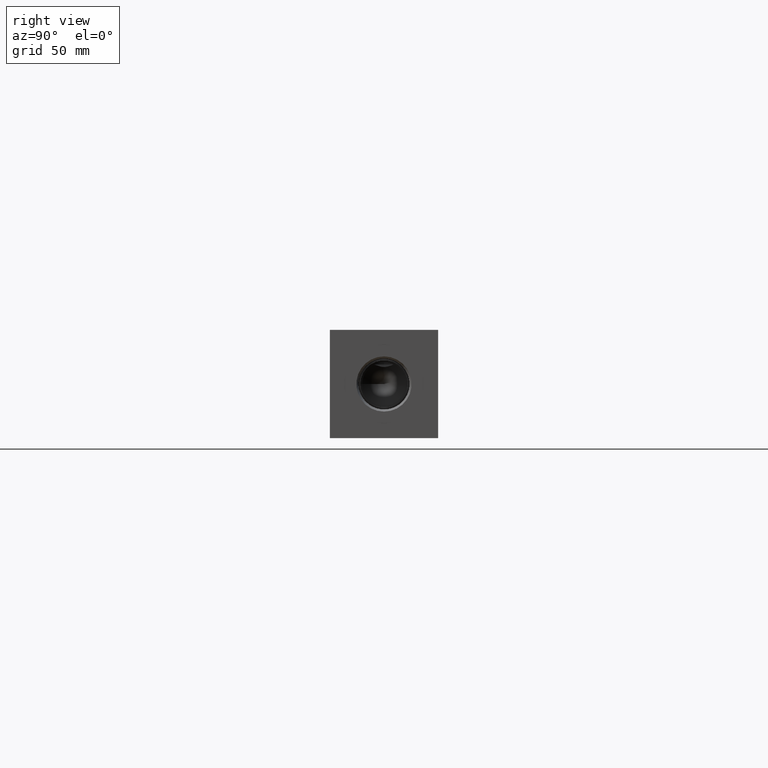
[diagram: clean part render]
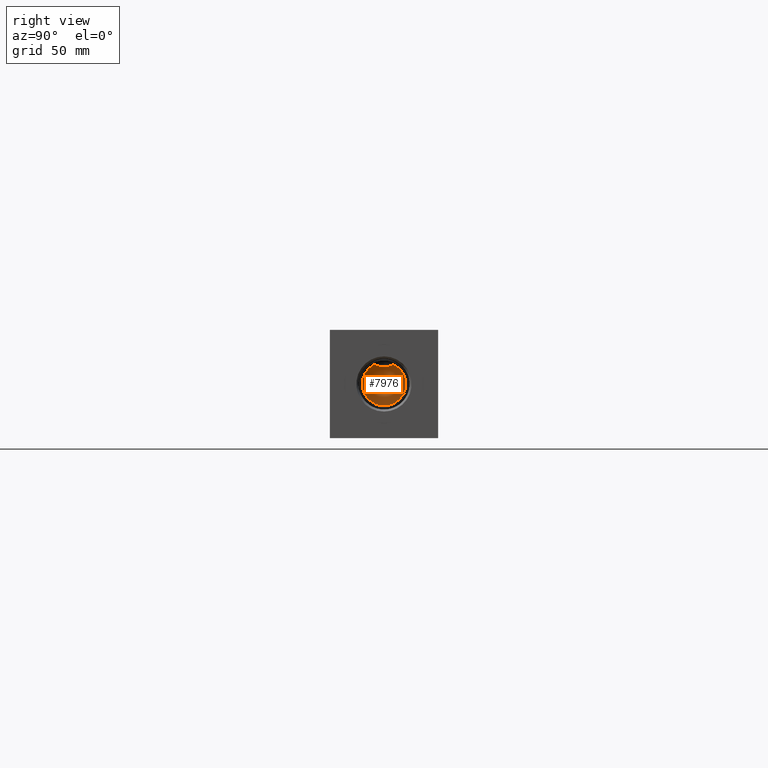
[diagram: same view with one face highlighted and labeled with its STEP entity id]
A machine part, right view. The second image highlights one B-rep face of the part: STEP entity #7976.
In plain terms, the highlighted conical surface has half-angle 60 deg.
Its self-contained STEP definition (entity closure, byte-faithful):
#26=CONICAL_SURFACE('',#8304,5.7531,1.0471975511966);
#125=CIRCLE('',#8302,11.5062);
#126=CIRCLE('',#8303,11.5062);
#864=FACE_OUTER_BOUND('',#1318,.T.);
#1318=EDGE_LOOP('',(#6704,#6705,#6706,#6707,#6708,#6709,#6710));
#2056=LINE('',#13604,#2753);
#2753=VECTOR('',#9601,5.7531);
#3085=B_SPLINE_CURVE_WITH_KNOTS('',3,(#13580,#13581,#13582,#13583),
 .UNSPECIFIED.,.F.,.F.,(4,4),(4.4094341682138,4.42262273878902),
 .UNSPECIFIED.);
#3086=B_SPLINE_CURVE_WITH_KNOTS('',3,(#13585,#13586,#13587,#13588,#13589,
#13590,#13591,#13592,#13593,#13594,#13595,#13596,#13597,#13598),
 .UNSPECIFIED.,.F.,.F.,(4,2,2,2,2,2,4),(2.13526414577203,2.39106507781983,
2.56185544052124,2.73264580322266,2.90343616592408,3.07422652862549,3.33002746067329),
 .UNSPECIFIED.);
#3087=B_SPLINE_CURVE_WITH_KNOTS('',3,(#13599,#13600,#13601,#13602),
 .UNSPECIFIED.,.F.,.F.,(4,4),(5.70043914620522,5.71362771678044),
 .UNSPECIFIED.);
#3683=VERTEX_POINT('',#13562);
#3684=VERTEX_POINT('',#13564);
#3685=VERTEX_POINT('',#13566);
#3686=VERTEX_POINT('',#13579);
#3687=VERTEX_POINT('',#13584);
#3688=VERTEX_POINT('',#13603);
#4726=EDGE_CURVE('',#3684,#3683,#125,.T.);
#4728=EDGE_CURVE('',#3683,#3685,#126,.T.);
#4729=EDGE_CURVE('',#3686,#3685,#3085,.T.);
#4730=EDGE_CURVE('',#3687,#3686,#3086,.T.);
#4731=EDGE_CURVE('',#3684,#3687,#3087,.T.);
#4732=EDGE_CURVE('',#3683,#3688,#2056,.T.);
#6704=ORIENTED_EDGE('',*,*,#4729,.F.);
#6705=ORIENTED_EDGE('',*,*,#4730,.F.);
#6706=ORIENTED_EDGE('',*,*,#4731,.F.);
#6707=ORIENTED_EDGE('',*,*,#4726,.T.);
#6708=ORIENTED_EDGE('',*,*,#4732,.T.);
#6709=ORIENTED_EDGE('',*,*,#4732,.F.);
#6710=ORIENTED_EDGE('',*,*,#4728,.T.);
#7976=ADVANCED_FACE('',(#864),#26,.F.);
#8302=AXIS2_PLACEMENT_3D('',#13565,#9595,#9596);
#8303=AXIS2_PLACEMENT_3D('',#13577,#9597,#9598);
#8304=AXIS2_PLACEMENT_3D('',#13578,#9599,#9600);
#9595=DIRECTION('center_axis',(1.,0.,0.));
#9596=DIRECTION('ref_axis',(0.,1.,0.));
#9597=DIRECTION('center_axis',(1.,0.,0.));
#9598=DIRECTION('ref_axis',(0.,1.,0.));
#9599=DIRECTION('center_axis',(1.,0.,0.));
#9600=DIRECTION('ref_axis',(0.,1.,0.));
#9601=DIRECTION('',(-0.5,0.866025403784439,1.06057523872491E-16));
#13562=CARTESIAN_POINT('',(346.96778,17.0688,28.575));
#13564=CARTESIAN_POINT('',(346.96778,23.6648179298929,38.980899791868));
#13565=CARTESIAN_POINT('Origin',(346.96778,28.575,28.575));
#13566=CARTESIAN_POINT('',(346.96778,33.4851820701071,38.980899791868));
#13577=CARTESIAN_POINT('Origin',(346.96778,28.575,28.575));
#13578=CARTESIAN_POINT('Origin',(343.646226166325,28.575,28.575));
#13579=CARTESIAN_POINT('',(346.922354080355,33.5515293460397,38.862));
#13580=CARTESIAN_POINT('Ctrl Pts',(346.922354080355,33.5515293460398,38.862));
#13581=CARTESIAN_POINT('Ctrl Pts',(346.9375100744,33.5296098419044,38.9017653671054));
#13582=CARTESIAN_POINT('Ctrl Pts',(346.952654200088,33.5074934303628,38.9414029870342));
#13583=CARTESIAN_POINT('Ctrl Pts',(346.96778,33.4851820701071,38.980899791868));
#13584=CARTESIAN_POINT('',(346.922354080355,23.5984706539603,38.862));
#13585=CARTESIAN_POINT('Ctrl Pts',(346.922354080355,23.5984706539603,38.862));
#13586=CARTESIAN_POINT('Ctrl Pts',(346.611964217633,24.2545887109236,38.582193464477));
#13587=CARTESIAN_POINT('Ctrl Pts',(346.326306809631,24.9101605019772,38.3200116118159));
#13588=CARTESIAN_POINT('Ctrl Pts',(345.922670579642,26.0438568907344,37.9428493673458));
#13589=CARTESIAN_POINT('Ctrl Pts',(345.780862165142,26.5074167463348,37.8082169082486));
#13590=CARTESIAN_POINT('Ctrl Pts',(345.568923117681,27.4883305191796,37.6051063904935));
#13591=CARTESIAN_POINT('Ctrl Pts',(345.498741571941,28.0056987909953,37.5367508043314));
#13592=CARTESIAN_POINT('Ctrl Pts',(345.498741571941,29.1443012090047,37.5367508043314));
#13593=CARTESIAN_POINT('Ctrl Pts',(345.568923117681,29.6616694808204,37.6051063904935));
#13594=CARTESIAN_POINT('Ctrl Pts',(345.780862165142,30.6425832536652,37.8082169082486));
#13595=CARTESIAN_POINT('Ctrl Pts',(345.922670579642,31.1061431092656,37.9428493673458));
#13596=CARTESIAN_POINT('Ctrl Pts',(346.326306809631,32.2398394980228,38.3200116118159));
#13597=CARTESIAN_POINT('Ctrl Pts',(346.611964217633,32.8954112890764,38.5821934644769));
#13598=CARTESIAN_POINT('Ctrl Pts',(346.922354080355,33.5515293460397,38.862));
#13599=CARTESIAN_POINT('Ctrl Pts',(346.96778,23.6648179298929,38.980899791868));
#13600=CARTESIAN_POINT('Ctrl Pts',(346.952654164397,23.6425065169909,38.9414028938368));
#13601=CARTESIAN_POINT('Ctrl Pts',(346.937510120951,23.6203902254209,38.9017654892439));
#13602=CARTESIAN_POINT('Ctrl Pts',(346.922354080355,23.5984706539603,38.862));
#13603=CARTESIAN_POINT('',(340.32467233265,28.575,28.575));
#13604=CARTESIAN_POINT('',(343.646226166325,22.8219,28.575));